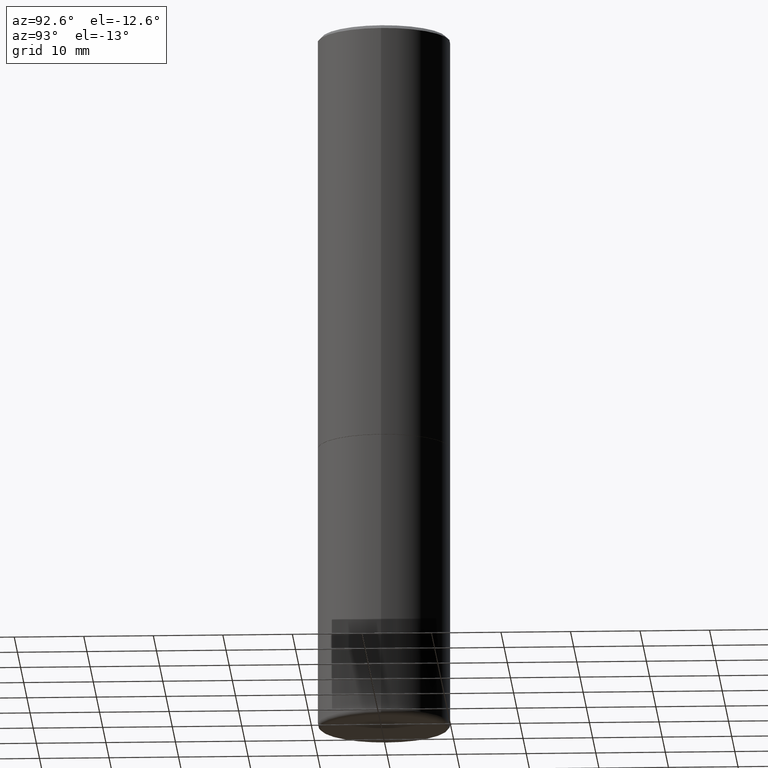
[diagram: clean part render]
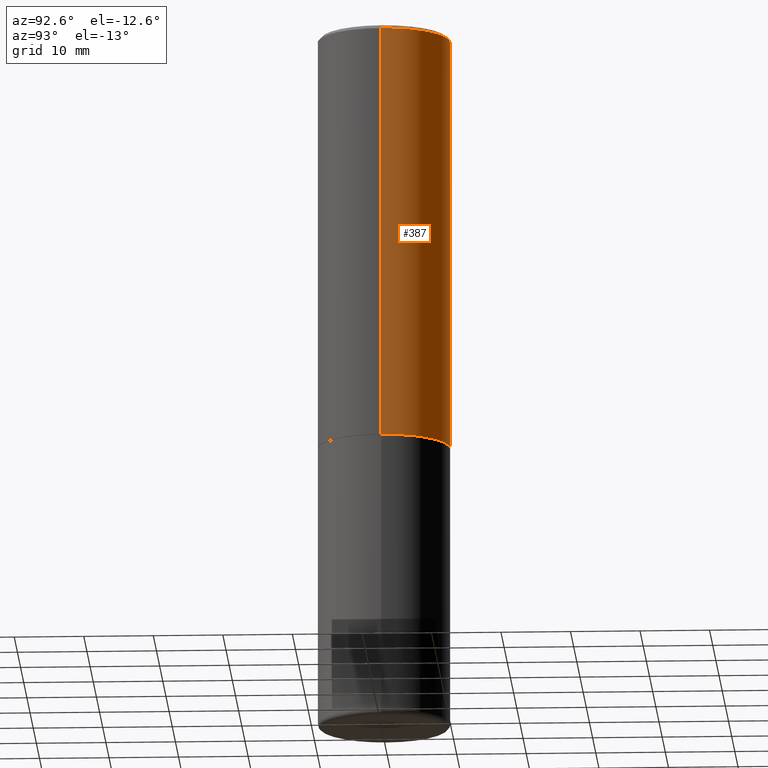
[diagram: same view with one face highlighted and labeled with its STEP entity id]
A machine part, auxiliary view. The second image highlights one B-rep face of the part: STEP entity #387.
In plain terms, the highlighted cylindrical surface (partial cylindrical patch) has radius 9.525 mm, axis along (-0, 0, 1).
Its self-contained STEP definition (entity closure, byte-faithful):
#5 = DIRECTION ( 'NONE',  ( 1.000000000000000000, -6.982962677686267499E-15, 0.000000000000000000 ) ) ;
#16 = CARTESIAN_POINT ( 'NONE',  ( 0.3749999999999992784, -2.642516375941182506E-15, -0.02000000000000018430 ) ) ;
#18 = LINE ( 'NONE', #466, #221 ) ;
#31 = DIRECTION ( 'NONE',  ( -2.445468806185136877E-29, 3.491481338843145188E-15, 1.000000000000000000 ) ) ;
#35 = CIRCLE ( 'NONE', #74, 0.3749999999999992784 ) ;
#74 = AXIS2_PLACEMENT_3D ( 'NONE', #305, #297, #5 ) ;
#79 = CARTESIAN_POINT ( 'NONE',  ( -0.3749999999999992784, 2.548781377355481985E-15, -0.02000000000000018430 ) ) ;
#81 = CARTESIAN_POINT ( 'NONE',  ( 0.000000000000000000, 0.000000000000000000, 0.000000000000000000 ) ) ;
#107 = EDGE_CURVE ( 'NONE', #197, #363, #250, .T. ) ;
#119 = CYLINDRICAL_SURFACE ( 'NONE', #323, 0.3749999999999993894 ) ;
#122 = DIRECTION ( 'NONE',  ( -2.445468806185136597E-29, 3.491481338843145583E-15, 1.000000000000000000 ) ) ;
#132 = DIRECTION ( 'NONE',  ( -2.445468806185136597E-29, 3.491481338843145583E-15, 1.000000000000000000 ) ) ;
#134 = EDGE_LOOP ( 'NONE', ( #447, #280, #145, #253 ) ) ;
#145 = ORIENTED_EDGE ( 'NONE', *, *, #178, .F. ) ;
#150 = CARTESIAN_POINT ( 'NONE',  ( 0.3749999999999995559, -1.090738770254597397E-14, -2.373999999999999666 ) ) ;
#178 = EDGE_CURVE ( 'NONE', #451, #363, #35, .T. ) ;
#195 = DIRECTION ( 'NONE',  ( 1.000000000000000000, -6.982962677686266711E-15, 4.876176775795936353E-29 ) ) ;
#197 = VERTEX_POINT ( 'NONE', #309 ) ;
#204 = CIRCLE ( 'NONE', #235, 0.3749999999999995559 ) ;
#205 = VERTEX_POINT ( 'NONE', #150 ) ;
#221 = VECTOR ( 'NONE', #238, 39.37007874015748143 ) ;
#235 = AXIS2_PLACEMENT_3D ( 'NONE', #248, #132, #286 ) ;
#238 = DIRECTION ( 'NONE',  ( -2.445468806185136877E-29, 3.491481338843145188E-15, 1.000000000000000000 ) ) ;
#248 = CARTESIAN_POINT ( 'NONE',  ( 5.805542945883513814E-29, -8.288776698413627111E-15, -2.373999999999999666 ) ) ;
#250 = LINE ( 'NONE', #454, #290 ) ;
#253 = ORIENTED_EDGE ( 'NONE', *, *, #318, .F. ) ;
#280 = ORIENTED_EDGE ( 'NONE', *, *, #107, .T. ) ;
#286 = DIRECTION ( 'NONE',  ( 1.000000000000000000, -6.982962677686265133E-15, 0.000000000000000000 ) ) ;
#290 = VECTOR ( 'NONE', #31, 39.37007874015748143 ) ;
#297 = DIRECTION ( 'NONE',  ( -2.445468806185136597E-29, 3.491481338843145583E-15, 1.000000000000000000 ) ) ;
#305 = CARTESIAN_POINT ( 'NONE',  ( 4.890937612370317825E-31, -6.982962677686355704E-17, -0.02000000000000018430 ) ) ;
#309 = CARTESIAN_POINT ( 'NONE',  ( -0.3749999999999995559, -1.514767903494871085E-15, -2.373999999999999666 ) ) ;
#318 = EDGE_CURVE ( 'NONE', #205, #451, #18, .T. ) ;
#323 = AXIS2_PLACEMENT_3D ( 'NONE', #81, #122, #195 ) ;
#363 = VERTEX_POINT ( 'NONE', #79 ) ;
#387 = ADVANCED_FACE ( 'NONE', ( #468 ), #119, .T. ) ;
#447 = ORIENTED_EDGE ( 'NONE', *, *, #483, .T. ) ;
#451 = VERTEX_POINT ( 'NONE', #16 ) ;
#454 = CARTESIAN_POINT ( 'NONE',  ( -0.3749999999999993894, 2.664535259100371358E-15, -1.844600658845586515E-29 ) ) ;
#466 = CARTESIAN_POINT ( 'NONE',  ( 0.3749999999999993894, -2.618611004132345678E-15, 1.828566290923473120E-29 ) ) ;
#468 = FACE_OUTER_BOUND ( 'NONE', #134, .T. ) ;
#483 = EDGE_CURVE ( 'NONE', #205, #197, #204, .T. ) ;